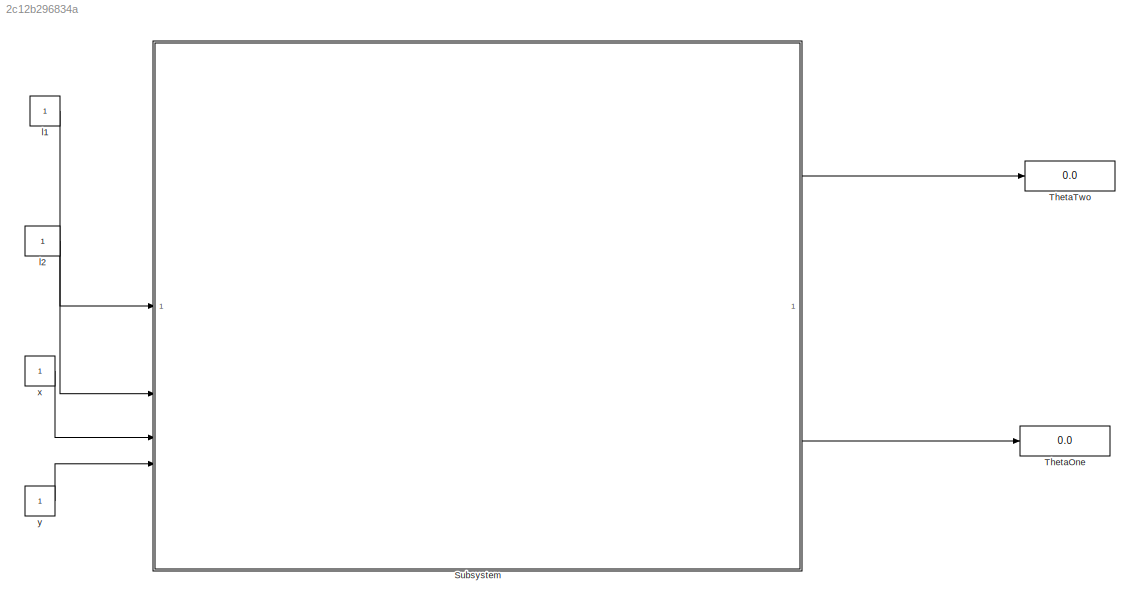
MODEL slx_2c12b296834a
KIND model
CONFIG AbsTol = auto
CONFIG EnableMultiTasking = off
CONFIG FixedStep = auto
CONFIG MaxStep = auto
CONFIG MinStep = auto
CONFIG RelTol = 1e-3
CONFIG SampleTimeConstraint = Unconstrained
CONFIG SolverName = VariableStepAuto
CONFIG StartTime = 0.0
CONFIG StopTime = 10.0
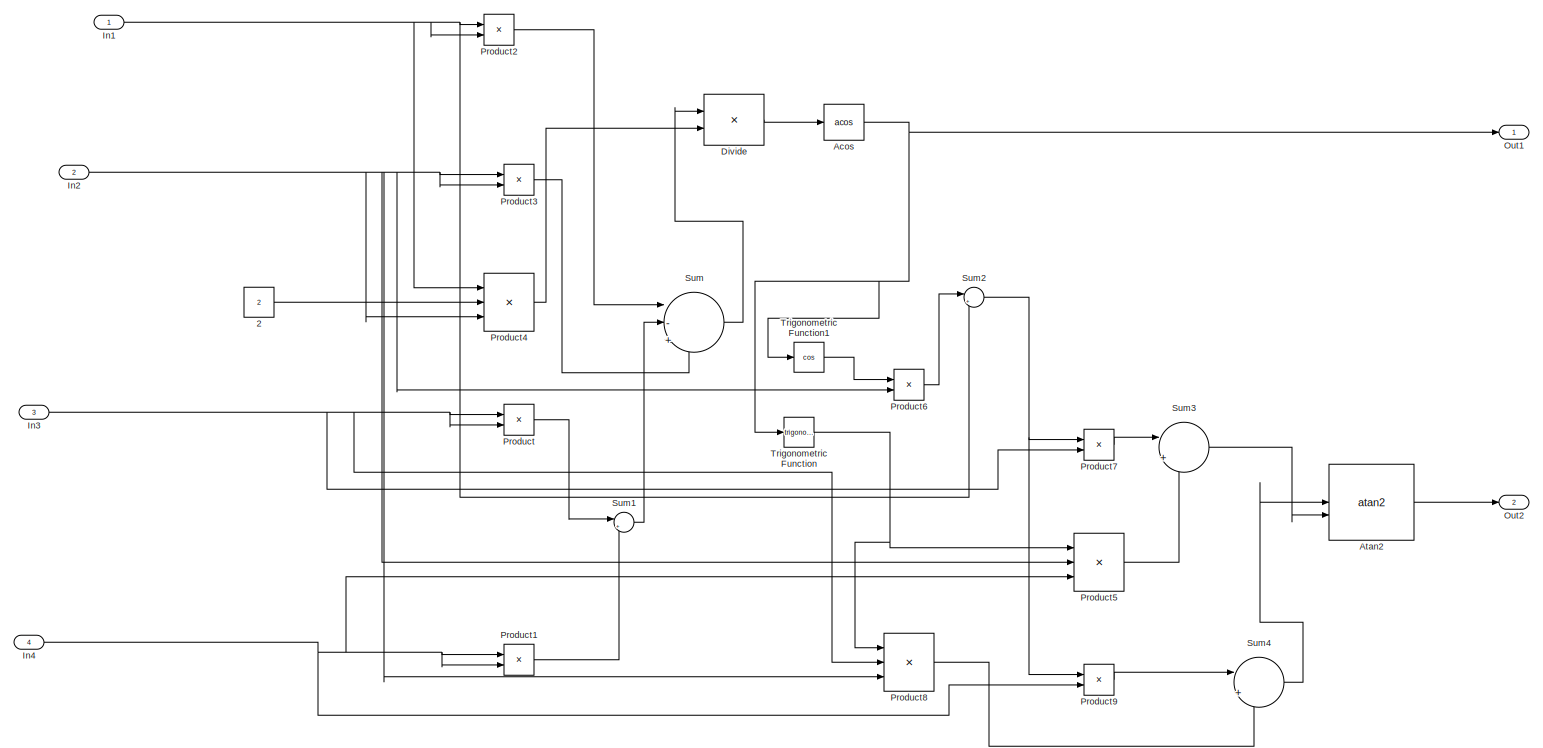
[diagram: Subsystem - part 1/1, most of the canvas]
BLOCK [SubSystem] Subsystem
BLOCK [Constant] Subsystem/2
  Value = 2
BLOCK [Trigonometry] Subsystem/Acos
  Operator = acos
BLOCK [Trigonometry] Subsystem/Atan2
  Operator = atan2
BLOCK [Product] Subsystem/Divide
  Inputs = */
BLOCK [Inport] Subsystem/In1
BLOCK [Inport] Subsystem/In2
  Port = 2
BLOCK [Inport] Subsystem/In3
  Port = 3
BLOCK [Inport] Subsystem/In4
  Port = 4
BLOCK [Outport] Subsystem/Out1
BLOCK [Outport] Subsystem/Out2
  Port = 2
BLOCK [Product] Subsystem/Product
BLOCK [Product] Subsystem/Product1
BLOCK [Product] Subsystem/Product2
BLOCK [Product] Subsystem/Product3
BLOCK [Product] Subsystem/Product4
  Inputs = 3
BLOCK [Product] Subsystem/Product5
  Inputs = 3
BLOCK [Product] Subsystem/Product6
BLOCK [Product] Subsystem/Product7
BLOCK [Product] Subsystem/Product8
  Inputs = 3
BLOCK [Product] Subsystem/Product9
BLOCK [Sum] Subsystem/Sum
  Inputs = |-+-
BLOCK [Sum] Subsystem/Sum1
  Inputs = |++
BLOCK [Sum] Subsystem/Sum2
  Inputs = |++
BLOCK [Sum] Subsystem/Sum3
  Inputs = |++
BLOCK [Sum] Subsystem/Sum4
  Inputs = |+-
BLOCK [Trigonometry] Subsystem/Trigonometric Function
BLOCK [Trigonometry] Subsystem/Trigonometric Function1
  Operator = cos
BLOCK [Display] ThetaOne
  Decimation = 1
BLOCK [Display] ThetaTwo
  Decimation = 1
BLOCK [Constant] l1
BLOCK [Constant] l2
BLOCK [Constant] x
BLOCK [Constant] y
LINE Subsystem/2:1 -> Subsystem/Product4:2
NET Subsystem/Acos:1 -> Subsystem/Out1:1, Subsystem/Trigonometric Function1:1, Subsystem/Trigonometric Function:1
LINE Subsystem/Atan2:1 -> Subsystem/Out2:1
LINE Subsystem/Divide:1 -> Subsystem/Acos:1
NET Subsystem/In1:1 -> Subsystem/Product2:1, Subsystem/Product2:2, Subsystem/Product4:1, Subsystem/Sum2:2
NET Subsystem/In2:1 -> Subsystem/Product3:1, Subsystem/Product3:2, Subsystem/Product4:3, Subsystem/Product5:2, Subsystem/Product6:2, Subsystem/Product8:3
NET Subsystem/In3:1 -> Subsystem/Product7:2, Subsystem/Product8:2, Subsystem/Product:1, Subsystem/Product:2
NET Subsystem/In4:1 -> Subsystem/Product1:1, Subsystem/Product1:2, Subsystem/Product5:3, Subsystem/Product9:2
LINE Subsystem/Product1:1 -> Subsystem/Sum1:2
LINE Subsystem/Product2:1 -> Subsystem/Sum:1
LINE Subsystem/Product3:1 -> Subsystem/Sum:3
LINE Subsystem/Product4:1 -> Subsystem/Divide:2
LINE Subsystem/Product5:1 -> Subsystem/Sum3:2
LINE Subsystem/Product6:1 -> Subsystem/Sum2:1
LINE Subsystem/Product7:1 -> Subsystem/Sum3:1
LINE Subsystem/Product8:1 -> Subsystem/Sum4:2
LINE Subsystem/Product9:1 -> Subsystem/Sum4:1
LINE Subsystem/Product:1 -> Subsystem/Sum1:1
LINE Subsystem/Sum1:1 -> Subsystem/Sum:2
NET Subsystem/Sum2:1 -> Subsystem/Product7:1, Subsystem/Product9:1
LINE Subsystem/Sum3:1 -> Subsystem/Atan2:2
LINE Subsystem/Sum4:1 -> Subsystem/Atan2:1
LINE Subsystem/Sum:1 -> Subsystem/Divide:1
LINE Subsystem/Trigonometric Function1:1 -> Subsystem/Product6:1
NET Subsystem/Trigonometric Function:1 -> Subsystem/Product5:1, Subsystem/Product8:1
LINE Subsystem:1 -> ThetaTwo:1
LINE Subsystem:2 -> ThetaOne:1
LINE l1:1 -> Subsystem:1
LINE l2:1 -> Subsystem:2
LINE x:1 -> Subsystem:3
LINE y:1 -> Subsystem:4
note: NET lines group one-source signal fan-out (src -> all destinations, sorted); 1:1 wires keep LINE
